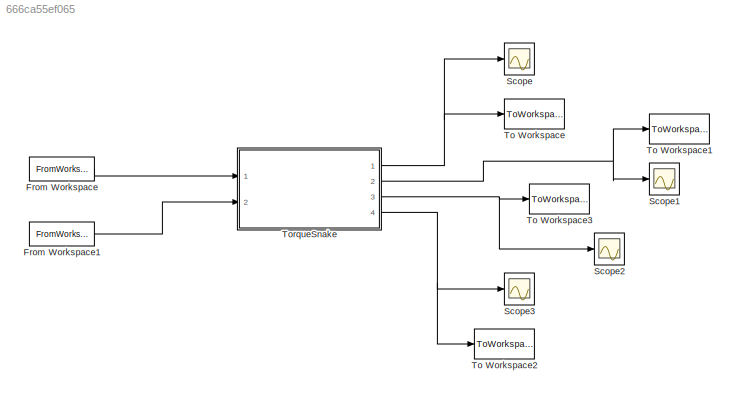
MODEL slx_666ca55ef065
KIND model
CONFIG AbsTol = auto
CONFIG FixedStep = 0.01
CONFIG MaxStep = auto
CONFIG MinStep = auto
CONFIG RelTol = 1e-3
CONFIG SampleTimeConstraint = Unconstrained
CONFIG Solver = FixedStepAuto
CONFIG SolverMode = Auto
CONFIG SolverName = FixedStepAuto
CONFIG StartTime = 0.0
CONFIG StopTime = tmax
BLOCK [FromWorkspace] From Workspace
  VariableName = [t', O1Ref']
  ZeroCross = on
BLOCK [FromWorkspace] From Workspace1
  VariableName = [t', O2Ref']
  ZeroCross = on
BLOCK [Scope] Scope
  Ports = [1]
  ScopeSpecificationString = Simulink.scopes.TimeScopeBlockCfg('CurrentConfiguration', extmgr.ConfigurationSet(extmgr.Configuration('Core','General UI',true),extmgr.Configuration('Core','Source UI',true),extmgr.Configuration('Sources','WiredSimulink',true),extmgr.Configuration('Visuals','Time Domain',true,'SerializedDisplays',{struct('MinYLimReal','-0.00429','MaxYLimReal','0.00429','YLabelReal','','MinYLimMag','0.00000','MaxY...<+1362ch>
BLOCK [Scope] Scope1
  Ports = [1]
  ScopeSpecificationString = Simulink.scopes.TimeScopeBlockCfg('CurrentConfiguration', extmgr.ConfigurationSet(extmgr.Configuration('Core','General UI',true),extmgr.Configuration('Core','Source UI',true),extmgr.Configuration('Sources','WiredSimulink',true,'DataLoggingVariableName','ScopeData1'),extmgr.Configuration('Visuals','Time Domain',true,'SerializedDisplays',{struct('MinYLimReal','-0.00165','MaxYLimReal','0.01481','YLab...<+1372ch>
BLOCK [Scope] Scope2
  Ports = [1]
  ScopeSpecificationString = Simulink.scopes.TimeScopeBlockCfg('CurrentConfiguration', extmgr.ConfigurationSet(extmgr.Configuration('Core','General UI',true),extmgr.Configuration('Core','Source UI',true),extmgr.Configuration('Sources','WiredSimulink',true,'DataLoggingVariableName','ScopeData2'),extmgr.Configuration('Visuals','Time Domain',true,'SerializedDisplays',{struct('MinYLimReal','-5.16742','MaxYLimReal','2.78625','YLab...<+1749ch>
BLOCK [Scope] Scope3
  Ports = [1]
  ScopeSpecificationString = Simulink.scopes.TimeScopeBlockCfg('CurrentConfiguration', extmgr.ConfigurationSet(extmgr.Configuration('Core','General UI',true),extmgr.Configuration('Core','Source UI',true),extmgr.Configuration('Sources','WiredSimulink',true,'DataLoggingVariableName','ScopeData3'),extmgr.Configuration('Visuals','Time Domain',true,'SerializedDisplays',{struct('MinYLimReal','-13.06082','MaxYLimReal','116.04237','Y...<+1755ch>
BLOCK [ToWorkspace] To Workspace
  FixptAsFi = on
  MaxDataPoints = inf
  Ports = [1]
  SampleTime = -1
  Save2DSignal = 3-D array (concatenate along third dimension)
  VariableName = VnI
BLOCK [ToWorkspace] To Workspace1
  FixptAsFi = on
  MaxDataPoints = inf
  Ports = [1]
  SampleTime = -1
  Save2DSignal = 3-D array (concatenate along third dimension)
  VariableName = VtI
BLOCK [ToWorkspace] To Workspace2
  FixptAsFi = on
  MaxDataPoints = inf
  Ports = [1]
  SampleTime = -1
  Save2DSignal = 3-D array (concatenate along third dimension)
  VariableName = u2
BLOCK [ToWorkspace] To Workspace3
  FixptAsFi = on
  MaxDataPoints = inf
  Ports = [1]
  SampleTime = -1
  Save2DSignal = 3-D array (concatenate along third dimension)
  VariableName = u1
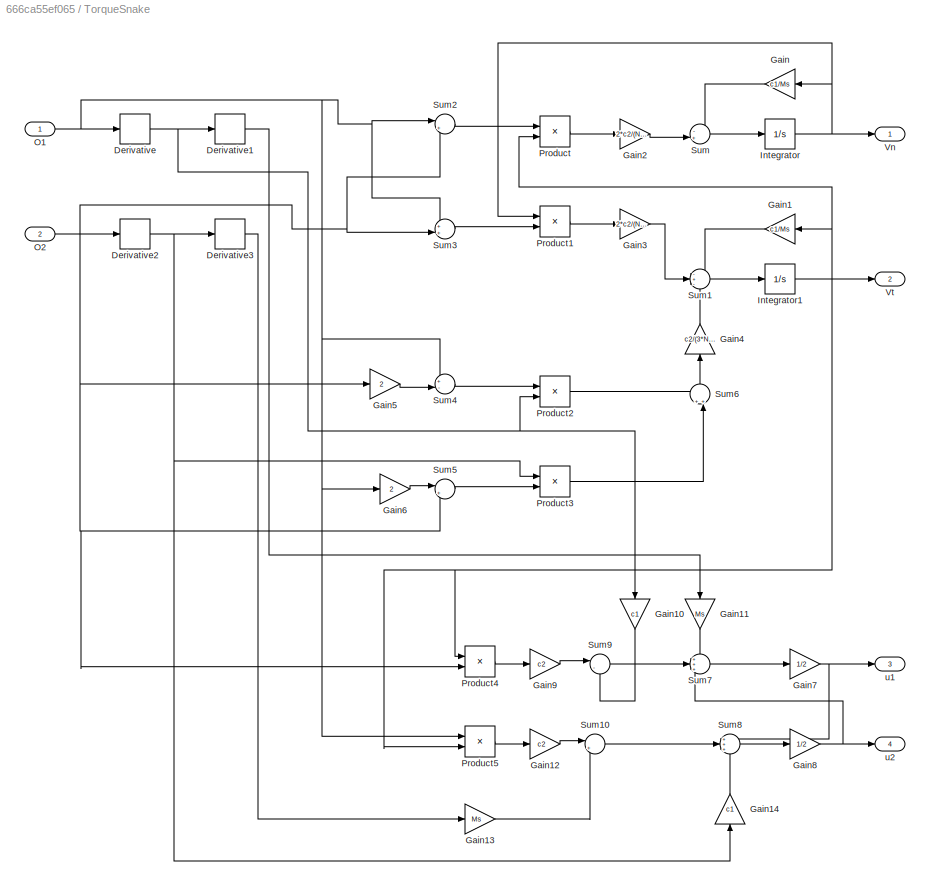
BLOCK [SubSystem] TorqueSnake
  Ports = [2, 4]
  RequestExecContextInheritance = off
  Variant = off
BLOCK [Derivative] TorqueSnake/Derivative
BLOCK [Derivative] TorqueSnake/Derivative1
BLOCK [Derivative] TorqueSnake/Derivative2
BLOCK [Derivative] TorqueSnake/Derivative3
BLOCK [Gain] TorqueSnake/Gain
  Gain = c1/Ms
  OutDataTypeStr = Inherit: Inherit via internal rule
  ParamDataTypeStr = Inherit: Inherit via internal rule
  SaturateOnIntegerOverflow = off
BLOCK [Gain] TorqueSnake/Gain1
  Gain = c1/Ms
  OutDataTypeStr = Inherit: Inherit via internal rule
  ParamDataTypeStr = Inherit: Inherit via internal rule
  SaturateOnIntegerOverflow = off
BLOCK [Gain] TorqueSnake/Gain10
  Gain = c1
  OutDataTypeStr = Inherit: Inherit via internal rule
  ParamDataTypeStr = Inherit: Inherit via internal rule
  SaturateOnIntegerOverflow = off
BLOCK [Gain] TorqueSnake/Gain11
  Gain = Ms
  OutDataTypeStr = Inherit: Inherit via internal rule
  ParamDataTypeStr = Inherit: Inherit via internal rule
  SaturateOnIntegerOverflow = off
BLOCK [Gain] TorqueSnake/Gain12
  Gain = c2
  OutDataTypeStr = Inherit: Inherit via internal rule
  ParamDataTypeStr = Inherit: Inherit via internal rule
  SaturateOnIntegerOverflow = off
BLOCK [Gain] TorqueSnake/Gain13
  Gain = Ms
  OutDataTypeStr = Inherit: Inherit via internal rule
  ParamDataTypeStr = Inherit: Inherit via internal rule
  SaturateOnIntegerOverflow = off
BLOCK [Gain] TorqueSnake/Gain14
  Gain = c1
  OutDataTypeStr = Inherit: Inherit via internal rule
  ParamDataTypeStr = Inherit: Inherit via internal rule
  SaturateOnIntegerOverflow = off
BLOCK [Gain] TorqueSnake/Gain2
  Gain = 2*c2/(N*Ms)
  OutDataTypeStr = Inherit: Inherit via internal rule
  ParamDataTypeStr = Inherit: Inherit via internal rule
  SaturateOnIntegerOverflow = off
BLOCK [Gain] TorqueSnake/Gain3
  Gain = 2*c2/(N*Ms)
  OutDataTypeStr = Inherit: Inherit via internal rule
  ParamDataTypeStr = Inherit: Inherit via internal rule
  SaturateOnIntegerOverflow = off
BLOCK [Gain] TorqueSnake/Gain4
  Gain = c2/(3*N*Ms)
  OutDataTypeStr = Inherit: Inherit via internal rule
  ParamDataTypeStr = Inherit: Inherit via internal rule
  SaturateOnIntegerOverflow = off
BLOCK [Gain] TorqueSnake/Gain5
  Gain = 2
  OutDataTypeStr = Inherit: Inherit via internal rule
  ParamDataTypeStr = Inherit: Inherit via internal rule
  SaturateOnIntegerOverflow = off
BLOCK [Gain] TorqueSnake/Gain6
  Gain = 2
  OutDataTypeStr = Inherit: Inherit via internal rule
  ParamDataTypeStr = Inherit: Inherit via internal rule
  SaturateOnIntegerOverflow = off
BLOCK [Gain] TorqueSnake/Gain7
  Gain = 1/2
  OutDataTypeStr = Inherit: Inherit via internal rule
  ParamDataTypeStr = Inherit: Inherit via internal rule
  SaturateOnIntegerOverflow = off
BLOCK [Gain] TorqueSnake/Gain8
  Gain = 1/2
  OutDataTypeStr = Inherit: Inherit via internal rule
  ParamDataTypeStr = Inherit: Inherit via internal rule
  SaturateOnIntegerOverflow = off
BLOCK [Gain] TorqueSnake/Gain9
  Gain = c2
  OutDataTypeStr = Inherit: Inherit via internal rule
  ParamDataTypeStr = Inherit: Inherit via internal rule
  SaturateOnIntegerOverflow = off
BLOCK [Integrator] TorqueSnake/Integrator
  Ports = [1, 1]
BLOCK [Integrator] TorqueSnake/Integrator1
  Ports = [1, 1]
BLOCK [Inport] TorqueSnake/O1
  IconDisplay = Port number
BLOCK [Inport] TorqueSnake/O2
  IconDisplay = Port number
  Port = 2
BLOCK [Product] TorqueSnake/Product
  InputSameDT = off
  OutDataTypeStr = Inherit: Inherit via internal rule
  Ports = [2, 1]
  RndMeth = Floor
  SaturateOnIntegerOverflow = off
BLOCK [Product] TorqueSnake/Product1
  InputSameDT = off
  OutDataTypeStr = Inherit: Inherit via internal rule
  Ports = [2, 1]
  RndMeth = Floor
  SaturateOnIntegerOverflow = off
BLOCK [Product] TorqueSnake/Product2
  InputSameDT = off
  OutDataTypeStr = Inherit: Inherit via internal rule
  Ports = [2, 1]
  RndMeth = Floor
  SaturateOnIntegerOverflow = off
BLOCK [Product] TorqueSnake/Product3
  InputSameDT = off
  OutDataTypeStr = Inherit: Inherit via internal rule
  Ports = [2, 1]
  RndMeth = Floor
  SaturateOnIntegerOverflow = off
BLOCK [Product] TorqueSnake/Product4
  InputSameDT = off
  OutDataTypeStr = Inherit: Inherit via internal rule
  Ports = [2, 1]
  RndMeth = Floor
  SaturateOnIntegerOverflow = off
BLOCK [Product] TorqueSnake/Product5
  InputSameDT = off
  OutDataTypeStr = Inherit: Inherit via internal rule
  Ports = [2, 1]
  RndMeth = Floor
  SaturateOnIntegerOverflow = off
BLOCK [Sum] TorqueSnake/Sum
  IconShape = round
  InputSameDT = off
  Inputs = -+|
  OutDataTypeStr = Inherit: Inherit via internal rule
  Ports = [2, 1]
  SaturateOnIntegerOverflow = off
BLOCK [Sum] TorqueSnake/Sum1
  IconShape = round
  InputSameDT = off
  Inputs = -+-
  OutDataTypeStr = Inherit: Inherit via internal rule
  Ports = [3, 1]
  SaturateOnIntegerOverflow = off
BLOCK [Sum] TorqueSnake/Sum10
  IconShape = round
  InputSameDT = off
  Inputs = |++
  OutDataTypeStr = Inherit: Inherit via internal rule
  Ports = [2, 1]
  SaturateOnIntegerOverflow = off
BLOCK [Sum] TorqueSnake/Sum2
  IconShape = round
  InputSameDT = off
  Inputs = |++
  OutDataTypeStr = Inherit: Inherit via internal rule
  Ports = [2, 1]
  SaturateOnIntegerOverflow = off
BLOCK [Sum] TorqueSnake/Sum3
  IconShape = round
  InputSameDT = off
  Inputs = ++|
  OutDataTypeStr = Inherit: Inherit via internal rule
  Ports = [2, 1]
  SaturateOnIntegerOverflow = off
BLOCK [Sum] TorqueSnake/Sum4
  IconShape = round
  InputSameDT = off
  Inputs = +-|
  OutDataTypeStr = Inherit: Inherit via internal rule
  Ports = [2, 1]
  SaturateOnIntegerOverflow = off
BLOCK [Sum] TorqueSnake/Sum5
  IconShape = round
  InputSameDT = off
  Inputs = |+-
  OutDataTypeStr = Inherit: Inherit via internal rule
  Ports = [2, 1]
  SaturateOnIntegerOverflow = off
BLOCK [Sum] TorqueSnake/Sum6
  IconShape = round
  InputSameDT = off
  Inputs = ++|
  OutDataTypeStr = Inherit: Inherit via internal rule
  Ports = [2, 1]
  SaturateOnIntegerOverflow = off
BLOCK [Sum] TorqueSnake/Sum7
  IconShape = round
  InputSameDT = off
  Inputs = +++
  OutDataTypeStr = Inherit: Inherit via internal rule
  Ports = [3, 1]
  SaturateOnIntegerOverflow = off
BLOCK [Sum] TorqueSnake/Sum8
  IconShape = round
  InputSameDT = off
  Inputs = +++
  OutDataTypeStr = Inherit: Inherit via internal rule
  Ports = [3, 1]
  SaturateOnIntegerOverflow = off
BLOCK [Sum] TorqueSnake/Sum9
  IconShape = round
  InputSameDT = off
  Inputs = |-+
  OutDataTypeStr = Inherit: Inherit via internal rule
  Ports = [2, 1]
  SaturateOnIntegerOverflow = off
BLOCK [Outport] TorqueSnake/Vn
  IconDisplay = Port number
BLOCK [Outport] TorqueSnake/Vt 
  IconDisplay = Port number
  Port = 2
BLOCK [Outport] TorqueSnake/u1
  IconDisplay = Port number
  Port = 3
BLOCK [Outport] TorqueSnake/u2
  IconDisplay = Port number
  Port = 4
LINE From Workspace1:1 -> TorqueSnake:2
LINE From Workspace:1 -> TorqueSnake:1
LINE TorqueSnake/Derivative1:1 -> TorqueSnake/Gain11:1
NET TorqueSnake/Derivative2:1 -> TorqueSnake/Derivative3:1, TorqueSnake/Gain14:1, TorqueSnake/Product3:1
LINE TorqueSnake/Derivative3:1 -> TorqueSnake/Gain13:1
NET TorqueSnake/Derivative:1 -> TorqueSnake/Derivative1:1, TorqueSnake/Gain10:1, TorqueSnake/Product2:2
LINE TorqueSnake/Gain10:1 -> TorqueSnake/Sum9:2
LINE TorqueSnake/Gain11:1 -> TorqueSnake/Sum7:1
LINE TorqueSnake/Gain12:1 -> TorqueSnake/Sum10:1
LINE TorqueSnake/Gain13:1 -> TorqueSnake/Sum10:2
LINE TorqueSnake/Gain14:1 -> TorqueSnake/Sum8:3
LINE TorqueSnake/Gain1:1 -> TorqueSnake/Sum1:1
LINE TorqueSnake/Gain2:1 -> TorqueSnake/Sum:2
LINE TorqueSnake/Gain3:1 -> TorqueSnake/Sum1:2
LINE TorqueSnake/Gain4:1 -> TorqueSnake/Sum1:3
LINE TorqueSnake/Gain5:1 -> TorqueSnake/Sum4:2
LINE TorqueSnake/Gain6:1 -> TorqueSnake/Sum5:1
NET TorqueSnake/Gain7:1 -> TorqueSnake/Sum8:1, TorqueSnake/u1:1
NET TorqueSnake/Gain8:1 -> TorqueSnake/Sum7:3, TorqueSnake/u2:1
LINE TorqueSnake/Gain9:1 -> TorqueSnake/Sum9:1
LINE TorqueSnake/Gain:1 -> TorqueSnake/Sum:1
NET TorqueSnake/Integrator1:1 -> TorqueSnake/Gain1:1, TorqueSnake/Product4:1, TorqueSnake/Product5:2, TorqueSnake/Product:2, TorqueSnake/Vt :1
NET TorqueSnake/Integrator:1 -> TorqueSnake/Gain:1, TorqueSnake/Product1:1, TorqueSnake/Vn:1
NET TorqueSnake/O1:1 -> TorqueSnake/Derivative:1, TorqueSnake/Gain6:1, TorqueSnake/Product5:1, TorqueSnake/Sum2:1, TorqueSnake/Sum3:1, TorqueSnake/Sum4:1
NET TorqueSnake/O2:1 -> TorqueSnake/Derivative2:1, TorqueSnake/Gain5:1, TorqueSnake/Product4:2, TorqueSnake/Sum2:2, TorqueSnake/Sum3:2, TorqueSnake/Sum5:2
LINE TorqueSnake/Product1:1 -> TorqueSnake/Gain3:1
LINE TorqueSnake/Product2:1 -> TorqueSnake/Sum6:1
LINE TorqueSnake/Product3:1 -> TorqueSnake/Sum6:2
LINE TorqueSnake/Product4:1 -> TorqueSnake/Gain9:1
LINE TorqueSnake/Product5:1 -> TorqueSnake/Gain12:1
LINE TorqueSnake/Product:1 -> TorqueSnake/Gain2:1
LINE TorqueSnake/Sum10:1 -> TorqueSnake/Sum8:2
LINE TorqueSnake/Sum1:1 -> TorqueSnake/Integrator1:1
LINE TorqueSnake/Sum2:1 -> TorqueSnake/Product:1
LINE TorqueSnake/Sum3:1 -> TorqueSnake/Product1:2
LINE TorqueSnake/Sum4:1 -> TorqueSnake/Product2:1
LINE TorqueSnake/Sum5:1 -> TorqueSnake/Product3:2
LINE TorqueSnake/Sum6:1 -> TorqueSnake/Gain4:1
LINE TorqueSnake/Sum7:1 -> TorqueSnake/Gain7:1
LINE TorqueSnake/Sum8:1 -> TorqueSnake/Gain8:1
LINE TorqueSnake/Sum9:1 -> TorqueSnake/Sum7:2
LINE TorqueSnake/Sum:1 -> TorqueSnake/Integrator:1
NET TorqueSnake:1 -> Scope:1, To Workspace:1
NET TorqueSnake:2 -> Scope1:1, To Workspace1:1
NET TorqueSnake:3 -> Scope2:1, To Workspace3:1
NET TorqueSnake:4 -> Scope3:1, To Workspace2:1
note: NET lines group one-source signal fan-out (src -> all destinations, sorted); 1:1 wires keep LINE
